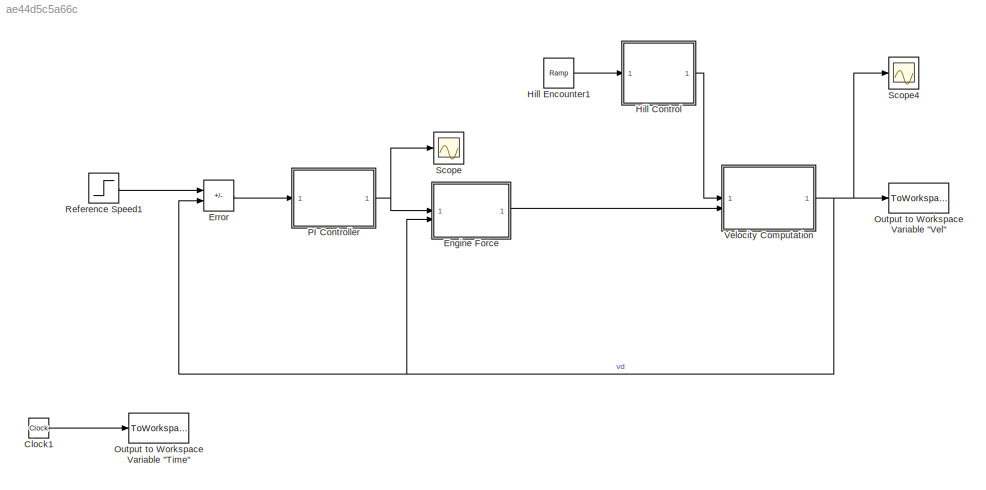
MODEL mdl_ae44d5c5a66c
KIND model
CONFIG AbsTol = auto
CONFIG EnableMultiTasking = on
CONFIG FixedStep = auto
CONFIG MaxStep = 0.1
CONFIG MinStep = auto
CONFIG PreLoadFcn = m = 1000;\nalpha = [40, 25, 16, 12, 10];\nTm = 190;\nwm = 420;\nbeta = 0.4;\nCr = 0.01;\nrho = 1.3;\nCd = 0.32;\nA = 2.4;\ng = 9.8;\ntheta = 0;\ngear = 3;
CONFIG RelTol = 1e-3
CONFIG SampleTimeConstraint = Unconstrained
CONFIG SolverName = ode45
CONFIG StartTime = 0.0
CONFIG StopTime = T
BLOCK [Clock] Clock1
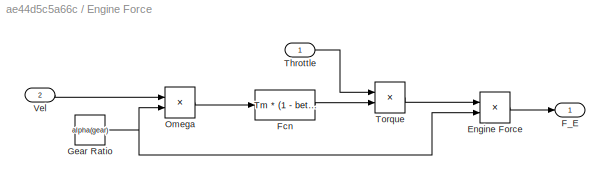
BLOCK [SubSystem] Engine Force
BLOCK [Product] Engine Force/Engine Force
  Inputs = **
BLOCK [Outport] Engine Force/F_E
BLOCK [Fcn] Engine Force/Fcn
  Expr = Tm * (1 - beta * (u[1]/wm - 1)^2)
BLOCK [Constant] Engine Force/Gear Ratio
  Value = alpha(gear)
BLOCK [Product] Engine Force/Omega
  RndMeth = Zero
BLOCK [Inport] Engine Force/Throttle
BLOCK [Product] Engine Force/Torque
  RndMeth = Zero
BLOCK [Inport] Engine Force/Vel
  Port = 2
BLOCK [Sum] Error
  IconShape = rectangular
  Inputs = +-
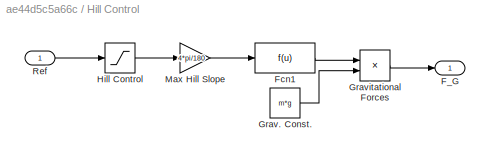
BLOCK [SubSystem] Hill Control
BLOCK [Outport] Hill Control/F_G
BLOCK [Fcn] Hill Control/Fcn1
BLOCK [Constant] Hill Control/Grav. Const.
  Value = m*g
BLOCK [Product] Hill Control/Gravitational Forces
  RndMeth = Zero
BLOCK [Saturate] Hill Control/Hill Control
  LowerLimit = 0
  UpperLimit = 1
BLOCK [Gain] Hill Control/Max Hill Slope
  Gain = 4*pi/180
BLOCK [Inport] Hill Control/Ref
BLOCK [Reference] Hill Encounter1  REF=simulink/Sources/Ramp
  SourceBlock = simulink/Sources/Ramp
  SourceType = Ramp
BLOCK [ToWorkspace] Output to Workspace Variable "Time"
  Decimation = 2
  MaxDataPoints = inf
  SampleTime = -1
  VariableName = Time
BLOCK [ToWorkspace] Output to Workspace Variable "Vel"
  Decimation = 2
  MaxDataPoints = inf
  SampleTime = -1
  VariableName = Vel
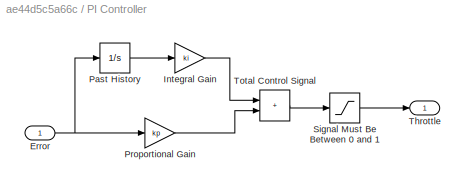
BLOCK [SubSystem] PI Controller
BLOCK [Inport] PI Controller/Error
BLOCK [Gain] PI Controller/Integral Gain
  Gain = ki
BLOCK [Integrator] PI Controller/Past History
  InitialCondition = 1
BLOCK [Gain] PI Controller/Proportional Gain
  Gain = kp
BLOCK [Saturate] PI Controller/Signal Must Be Between 0 and 1
  LowerLimit = 0
  UpperLimit = 1
BLOCK [Outport] PI Controller/Throttle
BLOCK [Sum] PI Controller/Total Control Signal
  IconShape = rectangular
BLOCK [Step] Reference Speed1
  After = 30
  Before = 20
  SampleTime = 0
  Time = 20
BLOCK [Scope] Scope
  Floating = off
  NumInputPorts = 1
  ScopeSpecificationString = Simulink.scopes.TimeScopeBlockCfg('CurrentConfiguration', extmgr.ConfigurationSet(extmgr.Configuration('Core','General UI',true),extmgr.Configuration('Core','Source UI',true),extmgr.Configuration('Sources','WiredSimulink',true,'DataLoggingVariableName','ScopeData1'),extmgr.Configuration('Visuals','Time Domain',true,'SerializedDisplays',{struct('MinYLimReal','-0.06146','MaxYLimReal','1.11794','YLab...<+1461ch>
BLOCK [Scope] Scope4
  Floating = off
  NumInputPorts = 1
  ScopeSpecificationString = Simulink.scopes.TimeScopeBlockCfg('CurrentConfiguration', extmgr.ConfigurationSet(extmgr.Configuration('Core','General UI',true),extmgr.Configuration('Core','Source UI',true),extmgr.Configuration('Sources','WiredSimulink',true,'DataLoggingVariableName','ScopeData1'),extmgr.Configuration('Visuals','Time Domain',true,'SerializedDisplays',{struct('MinYLimReal','18.28721','MaxYLimReal','35.25954','YLa...<+1474ch>
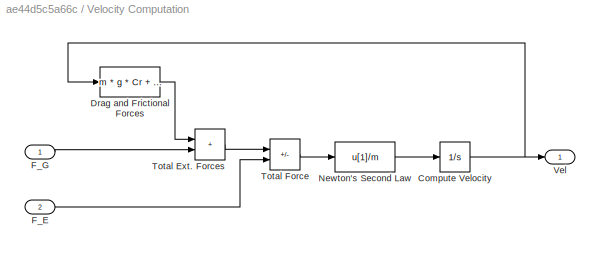
BLOCK [SubSystem] Velocity Computation
BLOCK [Integrator] Velocity Computation/Compute Velocity
  InitialCondition = 20
BLOCK [Fcn] Velocity Computation/Drag and Frictional Forces
  Expr = m * g * Cr + 0.5 * rho * Cd * A * (u[1])^2
BLOCK [Inport] Velocity Computation/F_E
  Port = 2
BLOCK [Inport] Velocity Computation/F_G
BLOCK [Fcn] Velocity Computation/Newton's Second Law
  Expr = u[1]/m
BLOCK [Sum] Velocity Computation/Total Ext. Forces
  IconShape = rectangular
BLOCK [Sum] Velocity Computation/Total Force
  IconShape = rectangular
  Inputs = -+
BLOCK [Outport] Velocity Computation/Vel
LINE Clock1:1 -> Output to Workspace Variable "Time":1
LINE Engine Force/Engine Force:1 -> Engine Force/F_E:1
LINE Engine Force/Fcn:1 -> Engine Force/Torque:2
NET Engine Force/Gear Ratio:1 -> Engine Force/Engine Force:2, Engine Force/Omega:2
LINE Engine Force/Omega:1 -> Engine Force/Fcn:1
LINE Engine Force/Throttle:1 -> Engine Force/Torque:1
LINE Engine Force/Torque:1 -> Engine Force/Engine Force:1
LINE Engine Force/Vel:1 -> Engine Force/Omega:1
LINE Engine Force:1 -> Velocity Computation:2
LINE Error:1 -> PI Controller:1
LINE Hill Control/Fcn1:1 -> Hill Control/Gravitational Forces:1
LINE Hill Control/Grav. Const.:1 -> Hill Control/Gravitational Forces:2
LINE Hill Control/Gravitational Forces:1 -> Hill Control/F_G:1
LINE Hill Control/Hill Control:1 -> Hill Control/Max Hill Slope:1
LINE Hill Control/Max Hill Slope:1 -> Hill Control/Fcn1:1
LINE Hill Control/Ref:1 -> Hill Control/Hill Control:1
LINE Hill Control:1 -> Velocity Computation:1
LINE Hill Encounter1:1 -> Hill Control:1
NET PI Controller/Error:1 -> PI Controller/Past History:1, PI Controller/Proportional Gain:1
LINE PI Controller/Integral Gain:1 -> PI Controller/Total Control Signal:1
LINE PI Controller/Past History:1 -> PI Controller/Integral Gain:1
LINE PI Controller/Proportional Gain:1 -> PI Controller/Total Control Signal:2
LINE PI Controller/Signal Must Be Between 0 and 1:1 -> PI Controller/Throttle:1
LINE PI Controller/Total Control Signal:1 -> PI Controller/Signal Must Be Between 0 and 1:1
NET PI Controller:1 -> Engine Force:1, Scope:1
LINE Reference Speed1:1 -> Error:1
NET Velocity Computation/Compute Velocity:1 -> Velocity Computation/Drag and Frictional Forces:1, Velocity Computation/Vel:1
LINE Velocity Computation/Drag and Frictional Forces:1 -> Velocity Computation/Total Ext. Forces:1
LINE Velocity Computation/F_E:1 -> Velocity Computation/Total Force:2
LINE Velocity Computation/F_G:1 -> Velocity Computation/Total Ext. Forces:2
LINE Velocity Computation/Newton's Second Law:1 -> Velocity Computation/Compute Velocity:1
LINE Velocity Computation/Total Ext. Forces:1 -> Velocity Computation/Total Force:1
LINE Velocity Computation/Total Force:1 -> Velocity Computation/Newton's Second Law:1
NET Velocity Computation:1 -> Engine Force:2, Error:2, Output to Workspace Variable "Vel":1, Scope4:1
note: NET lines group one-source signal fan-out (src -> all destinations, sorted); 1:1 wires keep LINE
